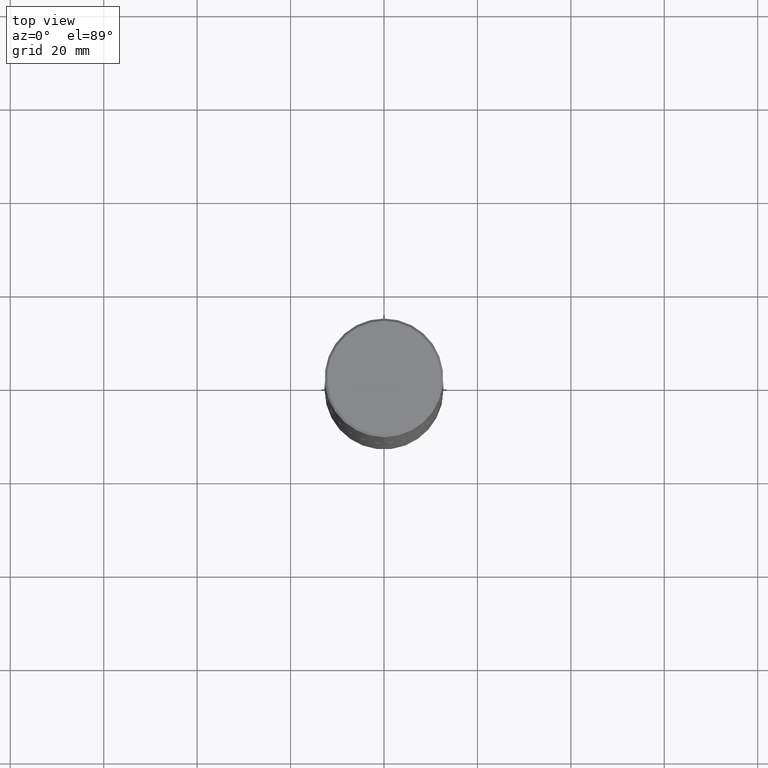
[diagram: clean part render]
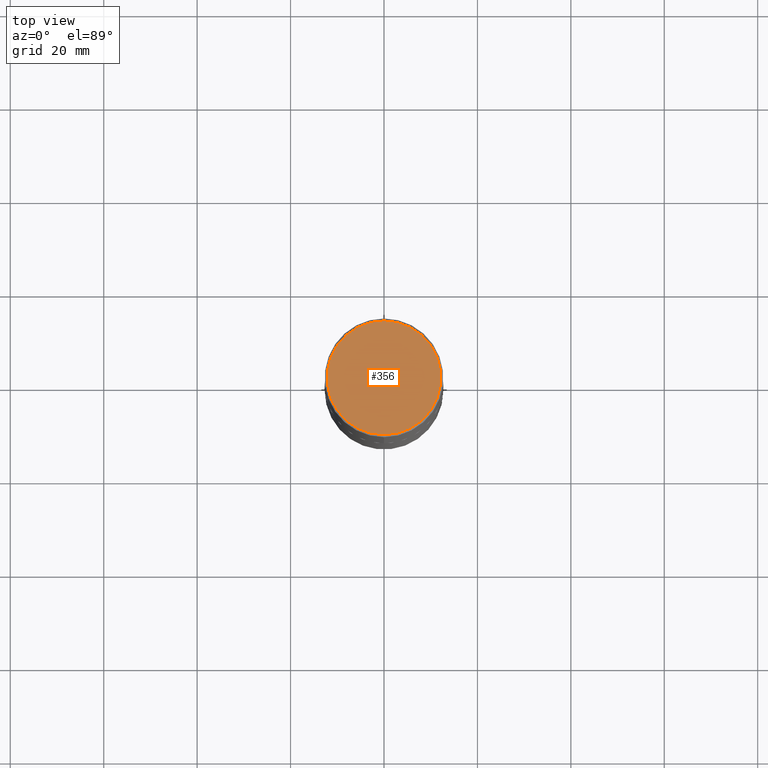
[diagram: same view with one face highlighted and labeled with its STEP entity id]
A machine part, top view. The second image highlights one B-rep face of the part: STEP entity #356.
In plain terms, the highlighted planar face has unit normal (0, -0, -1).
Its self-contained STEP definition (entity closure, byte-faithful):
#6 = DIRECTION ( 'NONE',  ( -6.982962677686265922E-15, -1.000000000000000000, 3.492298717528625990E-15 ) ) ;
#35 = CIRCLE ( 'NONE', #359, 0.4799999999999999267 ) ;
#54 = ORIENTED_EDGE ( 'NONE', *, *, #182, .T. ) ;
#97 = FACE_OUTER_BOUND ( 'NONE', #300, .T. ) ;
#101 = EDGE_CURVE ( 'NONE', #167, #281, #35, .T. ) ;
#131 = CARTESIAN_POINT ( 'NONE',  ( 3.351822085289407153E-15, 0.4799999999999999267, -1.624885063648019971E-15 ) ) ;
#133 = ORIENTED_EDGE ( 'NONE', *, *, #101, .T. ) ;
#149 = AXIS2_PLACEMENT_3D ( 'NONE', #131, #160, #370 ) ;
#157 = DIRECTION ( 'NONE',  ( -6.982962677686265922E-15, -1.000000000000000000, 3.492298717528625990E-15 ) ) ;
#160 = DIRECTION ( 'NONE',  ( 2.444898033699711371E-29, -3.492298717528626385E-15, -1.000000000000000000 ) ) ;
#167 = VERTEX_POINT ( 'NONE', #286 ) ;
#179 = CARTESIAN_POINT ( 'NONE',  ( -2.514251026725007597E-45, 3.591362713352002573E-31, 1.028366415314403880E-16 ) ) ;
#182 = EDGE_CURVE ( 'NONE', #281, #167, #269, .T. ) ;
#188 = CARTESIAN_POINT ( 'NONE',  ( 3.421651712066270057E-15, 0.4799999999999999267, -1.573466742882299844E-15 ) ) ;
#194 = CARTESIAN_POINT ( 'NONE',  ( -2.514251026725007597E-45, 3.591362713352002573E-31, 1.028366415314403880E-16 ) ) ;
#259 = PLANE ( 'NONE',  #149 ) ;
#269 = CIRCLE ( 'NONE', #416, 0.4799999999999999267 ) ;
#281 = VERTEX_POINT ( 'NONE', #188 ) ;
#286 = CARTESIAN_POINT ( 'NONE',  ( -3.361644018908049661E-15, -0.4799999999999999267, 1.779140025945180744E-15 ) ) ;
#300 = EDGE_LOOP ( 'NONE', ( #54, #133 ) ) ;
#304 = DIRECTION ( 'NONE',  ( -2.444898033699712212E-29, 3.492298717528625990E-15, 1.000000000000000000 ) ) ;
#326 = DIRECTION ( 'NONE',  ( -2.444898033699712212E-29, 3.492298717528625990E-15, 1.000000000000000000 ) ) ;
#356 = ADVANCED_FACE ( 'NONE', ( #97 ), #259, .F. ) ;
#359 = AXIS2_PLACEMENT_3D ( 'NONE', #194, #304, #157 ) ;
#370 = DIRECTION ( 'NONE',  ( 6.982962677686265922E-15, 1.000000000000000000, -3.492298717528626385E-15 ) ) ;
#416 = AXIS2_PLACEMENT_3D ( 'NONE', #179, #326, #6 ) ;